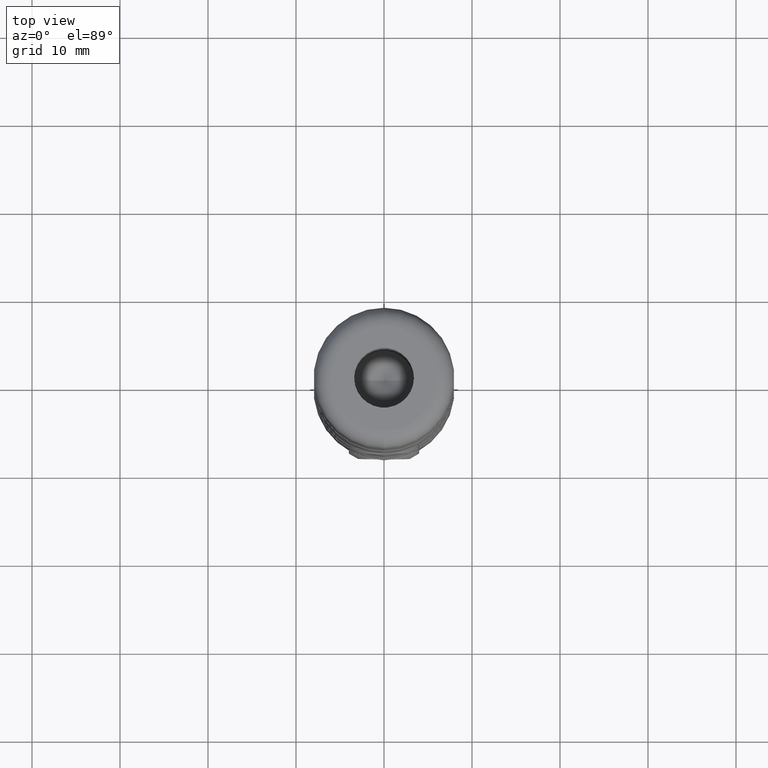
[diagram: clean part render]
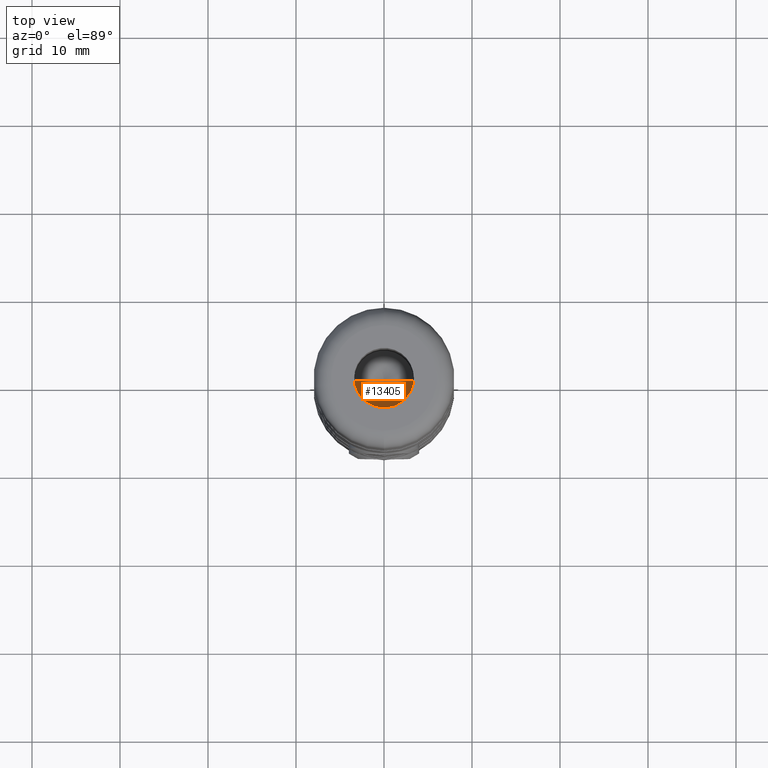
[diagram: same view with one face highlighted and labeled with its STEP entity id]
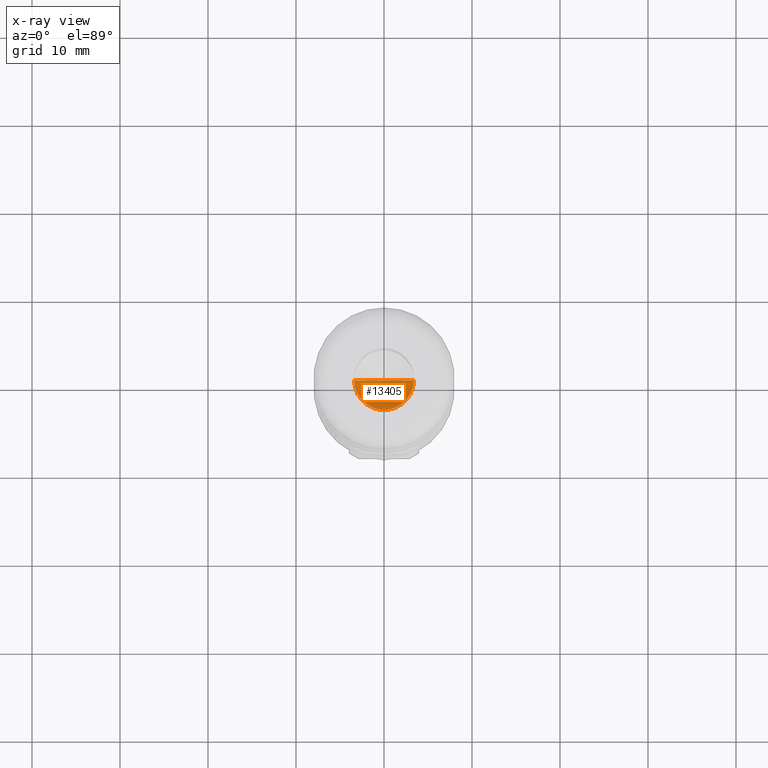
[diagram: x-ray of the same camera — body ghosted, the highlighted face saturated]
A machine part, top view. The second image highlights one B-rep face of the part: STEP entity #13405.
The next image is the same camera in x-ray: the body ghosted, the highlighted face saturated — about 11% of this face is hidden behind the body in this view.
In plain terms, the highlighted conical surface has half-angle 59 deg.
Its self-contained STEP definition (entity closure, byte-faithful):
#1451 = DIRECTION ( 'NONE',  ( -0.8571673007021113300, 1.049727191138617500E-016, 0.5150380749100558200 ) ) ;
#2031 = DIRECTION ( 'NONE',  ( -0.0000000000000000000, -0.0000000000000000000, 1.000000000000000000 ) ) ;
#2632 = CARTESIAN_POINT ( 'NONE',  ( 0.0000000000000000000, 4.206008368459476300E-015, 24.00000000000000000 ) ) ;
#2710 = ORIENTED_EDGE ( 'NONE', *, *, #8626, .F. ) ;
#3063 = LINE ( 'NONE', #17461, #15921 ) ;
#3856 = DIRECTION ( 'NONE',  ( 1.000000000000000000, 0.0000000000000000000, 0.0000000000000000000 ) ) ;
#6495 = ORIENTED_EDGE ( 'NONE', *, *, #15164, .T. ) ;
#6798 = VECTOR ( 'NONE', #1451, 1000.000000000000000 ) ;
#7772 = DIRECTION ( 'NONE',  ( 0.8571673007021113300, 0.0000000000000000000, 0.5150380749100558200 ) ) ;
#7905 = CIRCLE ( 'NONE', #12352, 3.399999999999995900 ) ;
#8626 = EDGE_CURVE ( 'NONE', #15942, #10132, #3063, .T. ) ;
#9167 = VERTEX_POINT ( 'NONE', #12373 ) ;
#9660 = ORIENTED_EDGE ( 'NONE', *, *, #14479, .T. ) ;
#9858 = CARTESIAN_POINT ( 'NONE',  ( 3.399999999999995900, 4.206008368459476300E-015, 24.00000000000000000 ) ) ;
#10132 = VERTEX_POINT ( 'NONE', #9858 ) ;
#11566 = FACE_OUTER_BOUND ( 'NONE', #15357, .T. ) ;
#11763 = CARTESIAN_POINT ( 'NONE',  ( 0.0000000000000000000, 4.206008368459476300E-015, 24.00000000000000000 ) ) ;
#12340 = CARTESIAN_POINT ( 'NONE',  ( -3.399999999999995900, 4.622388280169576000E-015, 24.00000000000000000 ) ) ;
#12352 = AXIS2_PLACEMENT_3D ( 'NONE', #11763, #2031, #3856 ) ;
#12373 = CARTESIAN_POINT ( 'NONE',  ( -3.399999999999995900, 4.622388280169576000E-015, 24.00000000000000000 ) ) ;
#13354 = DIRECTION ( 'NONE',  ( -0.0000000000000000000, -0.0000000000000000000, 1.000000000000000000 ) ) ;
#13405 = ADVANCED_FACE ( 'NONE', ( #11566 ), #13495, .F. ) ;
#13470 = DIRECTION ( 'NONE',  ( 1.000000000000000000, 0.0000000000000000000, 0.0000000000000000000 ) ) ;
#13495 = CONICAL_SURFACE ( 'NONE', #16149, 3.399999999999995900, 1.029744258676652500 ) ;
#14479 = EDGE_CURVE ( 'NONE', #15942, #9167, #14970, .T. ) ;
#14526 = CARTESIAN_POINT ( 'NONE',  ( -4.444763845975466900E-015, 4.206008368459476300E-015, 21.95707389530629100 ) ) ;
#14970 = LINE ( 'NONE', #12340, #6798 ) ;
#15164 = EDGE_CURVE ( 'NONE', #9167, #10132, #7905, .T. ) ;
#15357 = EDGE_LOOP ( 'NONE', ( #2710, #9660, #6495 ) ) ;
#15921 = VECTOR ( 'NONE', #7772, 1000.000000000000000 ) ;
#15942 = VERTEX_POINT ( 'NONE', #14526 ) ;
#16149 = AXIS2_PLACEMENT_3D ( 'NONE', #2632, #13354, #13470 ) ;
#17461 = CARTESIAN_POINT ( 'NONE',  ( 3.399999999999995900, 4.206008368459476300E-015, 24.00000000000000000 ) ) ;